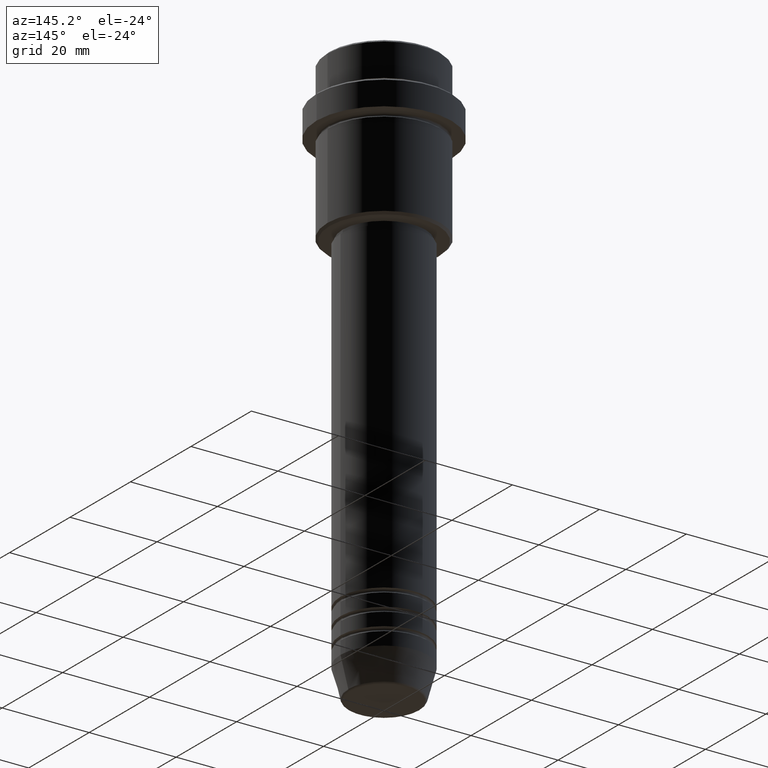
[diagram: clean part render]
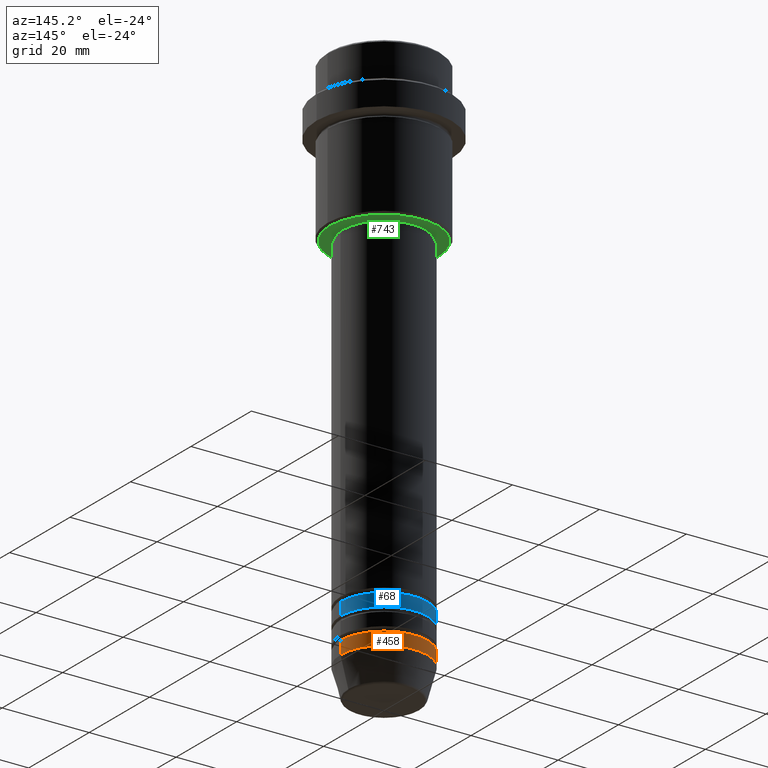
[diagram: same view with three faces highlighted in distinct colors, each labeled with its STEP entity id]
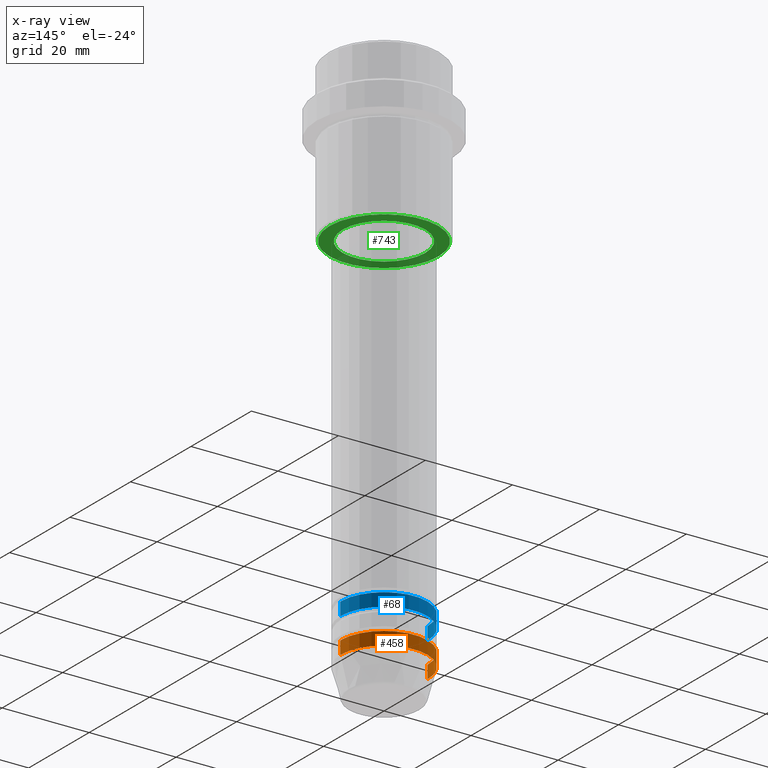
[diagram: x-ray of the same camera — body ghosted, the three highlighted faces saturated]
A machine part, auxiliary view with three faces highlighted in distinct colors.
The next image is the same camera in x-ray (body ghosted, the three faces saturated) — at least one of them is partly hidden behind the body in this view.
Their STEP definitions:

[orange] entity #458 — the highlighted cylindrical surface (partial cylindrical patch) has radius 10 mm, axis along (-0, -0, 1).
#45 = EDGE_CURVE ( 'NONE', #549, #620, #412, .T. ) ;
#132 = EDGE_CURVE ( 'NONE', #394, #620, #152, .T. ) ;
#149 = DIRECTION ( 'NONE',  ( 1.000000000000000000, 0.000000000000000000, 0.000000000000000000 ) ) ;
#152 = CIRCLE ( 'NONE', #945, 10.00000000000000000 ) ;
#180 = AXIS2_PLACEMENT_3D ( 'NONE', #391, #714, #195 ) ;
#195 = DIRECTION ( 'NONE',  ( 1.000000000000000000, 0.000000000000000000, 0.000000000000000000 ) ) ;
#211 = EDGE_CURVE ( 'NONE', #658, #394, #1361, .T. ) ;
#215 = DIRECTION ( 'NONE',  ( -0.000000000000000000, -0.000000000000000000, 1.000000000000000000 ) ) ;
#262 = CARTESIAN_POINT ( 'NONE',  ( -10.00000000000000000, 1.224646799147353256E-15, -124.0000000000000000 ) ) ;
#330 = CARTESIAN_POINT ( 'NONE',  ( 10.00000000000000000, 0.000000000000000000, -121.0000000000000000 ) ) ;
#391 = CARTESIAN_POINT ( 'NONE',  ( 0.000000000000000000, 0.000000000000000000, -124.0000000000000000 ) ) ;
#394 = VERTEX_POINT ( 'NONE', #330 ) ;
#412 = LINE ( 'NONE', #1080, #774 ) ;
#458 = ADVANCED_FACE ( 'NONE', ( #467 ), #1251, .T. ) ;
#459 = CARTESIAN_POINT ( 'NONE',  ( -10.00000000000000000, 1.224646799147353256E-15, -121.0000000000000000 ) ) ;
#467 = FACE_OUTER_BOUND ( 'NONE', #1364, .T. ) ;
#549 = VERTEX_POINT ( 'NONE', #262 ) ;
#558 = ORIENTED_EDGE ( 'NONE', *, *, #45, .T. ) ;
#596 = EDGE_CURVE ( 'NONE', #658, #549, #1329, .T. ) ;
#620 = VERTEX_POINT ( 'NONE', #459 ) ;
#658 = VERTEX_POINT ( 'NONE', #1380 ) ;
#667 = ORIENTED_EDGE ( 'NONE', *, *, #211, .F. ) ;
#681 = ORIENTED_EDGE ( 'NONE', *, *, #596, .T. ) ;
#691 = DIRECTION ( 'NONE',  ( -0.000000000000000000, -0.000000000000000000, 1.000000000000000000 ) ) ;
#714 = DIRECTION ( 'NONE',  ( -0.000000000000000000, -0.000000000000000000, 1.000000000000000000 ) ) ;
#774 = VECTOR ( 'NONE', #1191, 1000.000000000000000 ) ;
#847 = VECTOR ( 'NONE', #691, 1000.000000000000000 ) ;
#913 = CARTESIAN_POINT ( 'NONE',  ( 10.00000000000000000, 0.000000000000000000, 0.000000000000000000 ) ) ;
#945 = AXIS2_PLACEMENT_3D ( 'NONE', #1041, #215, #1417 ) ;
#1041 = CARTESIAN_POINT ( 'NONE',  ( 0.000000000000000000, 0.000000000000000000, -121.0000000000000000 ) ) ;
#1080 = CARTESIAN_POINT ( 'NONE',  ( -10.00000000000000000, 1.224646799147353256E-15, 0.000000000000000000 ) ) ;
#1134 = ORIENTED_EDGE ( 'NONE', *, *, #132, .F. ) ;
#1191 = DIRECTION ( 'NONE',  ( -0.000000000000000000, -0.000000000000000000, 1.000000000000000000 ) ) ;
#1251 = CYLINDRICAL_SURFACE ( 'NONE', #1292, 10.00000000000000000 ) ;
#1292 = AXIS2_PLACEMENT_3D ( 'NONE', #1360, #1347, #149 ) ;
#1329 = CIRCLE ( 'NONE', #180, 10.00000000000000000 ) ;
#1347 = DIRECTION ( 'NONE',  ( -0.000000000000000000, -0.000000000000000000, 1.000000000000000000 ) ) ;
#1360 = CARTESIAN_POINT ( 'NONE',  ( 0.000000000000000000, 0.000000000000000000, 0.000000000000000000 ) ) ;
#1361 = LINE ( 'NONE', #913, #847 ) ;
#1364 = EDGE_LOOP ( 'NONE', ( #681, #558, #1134, #667 ) ) ;
#1380 = CARTESIAN_POINT ( 'NONE',  ( 10.00000000000000000, 0.000000000000000000, -124.0000000000000000 ) ) ;
#1417 = DIRECTION ( 'NONE',  ( 1.000000000000000000, 0.000000000000000000, 0.000000000000000000 ) ) ;

[blue] entity #68 — the highlighted cylindrical surface (partial cylindrical patch) has radius 10 mm, axis along (-0, -0, 1).
#13 = DIRECTION ( 'NONE',  ( 1.000000000000000000, 0.000000000000000000, 0.000000000000000000 ) ) ;
#68 = ADVANCED_FACE ( 'NONE', ( #751 ), #316, .T. ) ;
#78 = EDGE_CURVE ( 'NONE', #1207, #1325, #711, .T. ) ;
#96 = EDGE_CURVE ( 'NONE', #772, #1325, #642, .T. ) ;
#185 = AXIS2_PLACEMENT_3D ( 'NONE', #570, #786, #13 ) ;
#210 = DIRECTION ( 'NONE',  ( -0.000000000000000000, -0.000000000000000000, 1.000000000000000000 ) ) ;
#253 = CARTESIAN_POINT ( 'NONE',  ( 10.00000000000000000, 0.000000000000000000, 0.000000000000000000 ) ) ;
#293 = CARTESIAN_POINT ( 'NONE',  ( 10.00000000000000000, 0.000000000000000000, -112.9999999999998721 ) ) ;
#300 = DIRECTION ( 'NONE',  ( -0.000000000000000000, -0.000000000000000000, 1.000000000000000000 ) ) ;
#316 = CYLINDRICAL_SURFACE ( 'NONE', #1042, 10.00000000000000000 ) ;
#342 = CARTESIAN_POINT ( 'NONE',  ( -10.00000000000000000, 1.224646799147353256E-15, -112.9999999999998721 ) ) ;
#362 = ORIENTED_EDGE ( 'NONE', *, *, #96, .T. ) ;
#482 = ORIENTED_EDGE ( 'NONE', *, *, #78, .F. ) ;
#543 = EDGE_LOOP ( 'NONE', ( #1231, #362, #482, #655 ) ) ;
#570 = CARTESIAN_POINT ( 'NONE',  ( 0.000000000000000000, 0.000000000000000000, -115.9999999999998863 ) ) ;
#593 = VERTEX_POINT ( 'NONE', #1170 ) ;
#642 = LINE ( 'NONE', #841, #756 ) ;
#655 = ORIENTED_EDGE ( 'NONE', *, *, #1299, .F. ) ;
#673 = DIRECTION ( 'NONE',  ( -0.000000000000000000, -0.000000000000000000, 1.000000000000000000 ) ) ;
#711 = CIRCLE ( 'NONE', #1268, 10.00000000000000000 ) ;
#746 = CARTESIAN_POINT ( 'NONE',  ( 0.000000000000000000, 0.000000000000000000, 0.000000000000000000 ) ) ;
#751 = FACE_OUTER_BOUND ( 'NONE', #543, .T. ) ;
#756 = VECTOR ( 'NONE', #300, 1000.000000000000000 ) ;
#772 = VERTEX_POINT ( 'NONE', #966 ) ;
#783 = CIRCLE ( 'NONE', #185, 10.00000000000000000 ) ;
#786 = DIRECTION ( 'NONE',  ( -0.000000000000000000, -0.000000000000000000, 1.000000000000000000 ) ) ;
#841 = CARTESIAN_POINT ( 'NONE',  ( -10.00000000000000000, 1.224646799147353256E-15, 0.000000000000000000 ) ) ;
#874 = VECTOR ( 'NONE', #673, 1000.000000000000000 ) ;
#966 = CARTESIAN_POINT ( 'NONE',  ( -10.00000000000000000, 1.224646799147353256E-15, -115.9999999999998863 ) ) ;
#1042 = AXIS2_PLACEMENT_3D ( 'NONE', #746, #1071, #1184 ) ;
#1071 = DIRECTION ( 'NONE',  ( -0.000000000000000000, -0.000000000000000000, 1.000000000000000000 ) ) ;
#1170 = CARTESIAN_POINT ( 'NONE',  ( 10.00000000000000000, 0.000000000000000000, -115.9999999999998863 ) ) ;
#1184 = DIRECTION ( 'NONE',  ( 1.000000000000000000, 0.000000000000000000, 0.000000000000000000 ) ) ;
#1186 = DIRECTION ( 'NONE',  ( 1.000000000000000000, 0.000000000000000000, 0.000000000000000000 ) ) ;
#1207 = VERTEX_POINT ( 'NONE', #293 ) ;
#1231 = ORIENTED_EDGE ( 'NONE', *, *, #1314, .T. ) ;
#1268 = AXIS2_PLACEMENT_3D ( 'NONE', #1302, #210, #1186 ) ;
#1299 = EDGE_CURVE ( 'NONE', #593, #1207, #1324, .T. ) ;
#1302 = CARTESIAN_POINT ( 'NONE',  ( 0.000000000000000000, 0.000000000000000000, -112.9999999999998721 ) ) ;
#1314 = EDGE_CURVE ( 'NONE', #593, #772, #783, .T. ) ;
#1324 = LINE ( 'NONE', #253, #874 ) ;
#1325 = VERTEX_POINT ( 'NONE', #342 ) ;

[green] entity #743 — the highlighted planar face has unit normal (0, 0, -1).
#15 = AXIS2_PLACEMENT_3D ( 'NONE', #1273, #411, #1061 ) ;
#22 = CARTESIAN_POINT ( 'NONE',  ( 12.49999999999999645, 0.000000000000000000, -35.99999999999999289 ) ) ;
#28 = DIRECTION ( 'NONE',  ( 0.000000000000000000, 0.000000000000000000, -1.000000000000000000 ) ) ;
#41 = VERTEX_POINT ( 'NONE', #322 ) ;
#74 = CARTESIAN_POINT ( 'NONE',  ( 9.499999999999996447, 0.000000000000000000, -35.99999999999998579 ) ) ;
#128 = CIRCLE ( 'NONE', #15, 9.499999999999996447 ) ;
#167 = DIRECTION ( 'NONE',  ( -1.000000000000000000, 0.000000000000000000, 0.000000000000000000 ) ) ;
#190 = FACE_OUTER_BOUND ( 'NONE', #379, .T. ) ;
#260 = VERTEX_POINT ( 'NONE', #74 ) ;
#277 = CARTESIAN_POINT ( 'NONE',  ( 0.000000000000000000, 0.000000000000000000, -35.99999999999999289 ) ) ;
#282 = FACE_BOUND ( 'NONE', #983, .T. ) ;
#322 = CARTESIAN_POINT ( 'NONE',  ( -12.49999999999999645, 1.561424668912875111E-15, -35.99999999999999289 ) ) ;
#326 = AXIS2_PLACEMENT_3D ( 'NONE', #1221, #1327, #167 ) ;
#328 = CIRCLE ( 'NONE', #326, 12.49999999999999645 ) ;
#350 = EDGE_CURVE ( 'NONE', #260, #1220, #128, .T. ) ;
#360 = ORIENTED_EDGE ( 'NONE', *, *, #504, .T. ) ;
#369 = VERTEX_POINT ( 'NONE', #22 ) ;
#379 = EDGE_LOOP ( 'NONE', ( #603, #360 ) ) ;
#397 = CARTESIAN_POINT ( 'NONE',  ( -9.499999999999996447, 1.163414459189985091E-15, -35.99999999999998579 ) ) ;
#411 = DIRECTION ( 'NONE',  ( -0.000000000000000000, -0.000000000000000000, 1.000000000000000000 ) ) ;
#460 = DIRECTION ( 'NONE',  ( 1.000000000000000000, 0.000000000000000000, 0.000000000000000000 ) ) ;
#494 = EDGE_CURVE ( 'NONE', #369, #41, #991, .T. ) ;
#498 = EDGE_CURVE ( 'NONE', #1220, #260, #1412, .T. ) ;
#504 = EDGE_CURVE ( 'NONE', #41, #369, #328, .T. ) ;
#603 = ORIENTED_EDGE ( 'NONE', *, *, #494, .T. ) ;
#743 = ADVANCED_FACE ( 'NONE', ( #190, #282 ), #1398, .T. ) ;
#761 = ORIENTED_EDGE ( 'NONE', *, *, #498, .T. ) ;
#781 = AXIS2_PLACEMENT_3D ( 'NONE', #1157, #978, #1200 ) ;
#790 = ORIENTED_EDGE ( 'NONE', *, *, #350, .T. ) ;
#899 = CARTESIAN_POINT ( 'NONE',  ( 0.000000000000000000, 0.000000000000000000, -35.99999999999998579 ) ) ;
#978 = DIRECTION ( 'NONE',  ( 0.000000000000000000, 0.000000000000000000, -1.000000000000000000 ) ) ;
#983 = EDGE_LOOP ( 'NONE', ( #790, #761 ) ) ;
#991 = CIRCLE ( 'NONE', #1238, 12.49999999999999645 ) ;
#1061 = DIRECTION ( 'NONE',  ( 1.000000000000000000, 0.000000000000000000, 0.000000000000000000 ) ) ;
#1138 = DIRECTION ( 'NONE',  ( -0.000000000000000000, -0.000000000000000000, 1.000000000000000000 ) ) ;
#1157 = CARTESIAN_POINT ( 'NONE',  ( 0.000000000000000000, 13.00000000000000000, -35.99999999999999289 ) ) ;
#1200 = DIRECTION ( 'NONE',  ( -1.000000000000000000, 0.000000000000000000, -0.000000000000000000 ) ) ;
#1220 = VERTEX_POINT ( 'NONE', #397 ) ;
#1221 = CARTESIAN_POINT ( 'NONE',  ( 0.000000000000000000, 0.000000000000000000, -35.99999999999999289 ) ) ;
#1238 = AXIS2_PLACEMENT_3D ( 'NONE', #277, #28, #1243 ) ;
#1243 = DIRECTION ( 'NONE',  ( -1.000000000000000000, 0.000000000000000000, 0.000000000000000000 ) ) ;
#1273 = CARTESIAN_POINT ( 'NONE',  ( 0.000000000000000000, 0.000000000000000000, -35.99999999999998579 ) ) ;
#1312 = AXIS2_PLACEMENT_3D ( 'NONE', #899, #1138, #460 ) ;
#1327 = DIRECTION ( 'NONE',  ( 0.000000000000000000, 0.000000000000000000, -1.000000000000000000 ) ) ;
#1398 = PLANE ( 'NONE',  #781 ) ;
#1412 = CIRCLE ( 'NONE', #1312, 9.499999999999996447 ) ;